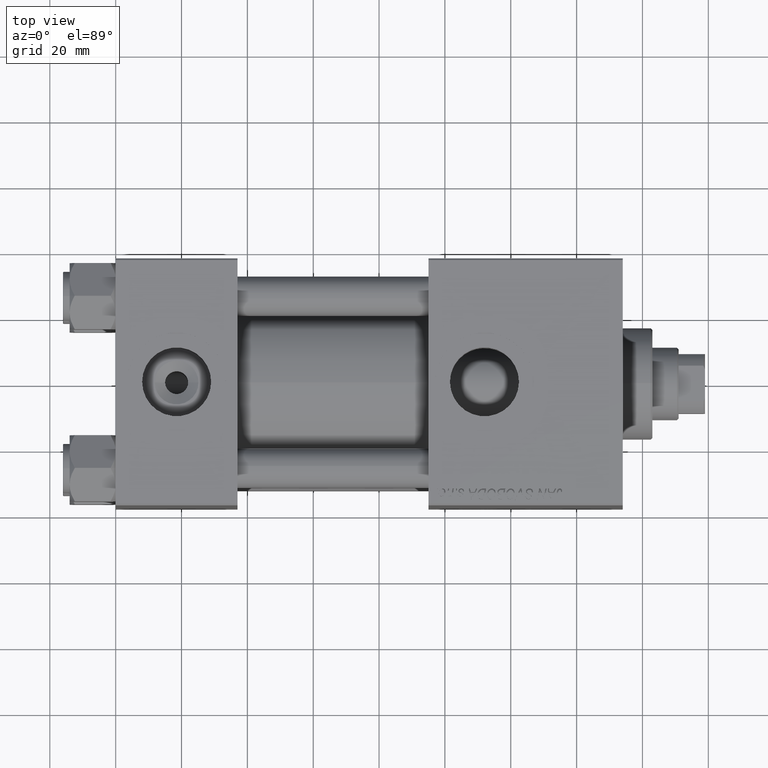
[diagram: clean part render]
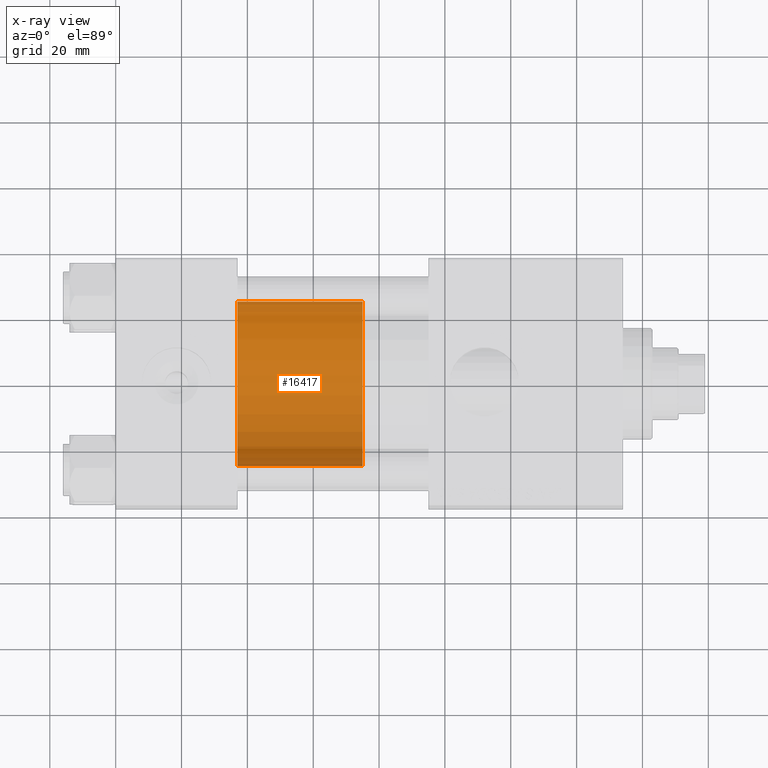
[diagram: x-ray — body ghosted, one internal face saturated and labeled with its STEP entity id]
A machine part, top view, then the same camera in x-ray: the body is ghosted and one INTERNAL B-rep face — a face not visible from any outside direction — is saturated and labeled: STEP entity #16417.
In plain terms, the highlighted cylindrical surface (partial cylindrical patch) has radius 25 mm, axis along (-1, 0, 0).
Its self-contained STEP definition (entity closure, byte-faithful):
#418 = ORIENTED_EDGE ( 'NONE', *, *, #31186, .F. ) ;
#1214 = CARTESIAN_POINT ( 'NONE',  ( 25.00000000000000000, 3.061616997868383043E-15, 38.00000000000000000 ) ) ;
#1657 = DIRECTION ( 'NONE',  ( 0.000000000000000000, 0.000000000000000000, 1.000000000000000000 ) ) ;
#1752 = AXIS2_PLACEMENT_3D ( 'NONE', #7257, #29870, #26308 ) ;
#1862 = CIRCLE ( 'NONE', #1752, 25.00000000000000000 ) ;
#3086 = EDGE_CURVE ( 'NONE', #42687, #5566, #40545, .T. ) ;
#4867 = ORIENTED_EDGE ( 'NONE', *, *, #48255, .T. ) ;
#5085 = EDGE_CURVE ( 'NONE', #42687, #28041, #1862, .T. ) ;
#5566 = VERTEX_POINT ( 'NONE', #44418 ) ;
#6024 = DIRECTION ( 'NONE',  ( -0.000000000000000000, -0.000000000000000000, -1.000000000000000000 ) ) ;
#6084 = CIRCLE ( 'NONE', #12551, 25.00000000000000000 ) ;
#6471 = ORIENTED_EDGE ( 'NONE', *, *, #5085, .F. ) ;
#7257 = CARTESIAN_POINT ( 'NONE',  ( 0.000000000000000000, 0.000000000000000000, 38.00000000000000000 ) ) ;
#8157 = EDGE_LOOP ( 'NONE', ( #6471, #45028, #4867, #418 ) ) ;
#12551 = AXIS2_PLACEMENT_3D ( 'NONE', #50218, #1657, #15449 ) ;
#13042 = LINE ( 'NONE', #39721, #19143 ) ;
#15449 = DIRECTION ( 'NONE',  ( 1.000000000000000000, 0.000000000000000000, 0.000000000000000000 ) ) ;
#16417 = ADVANCED_FACE ( 'NONE', ( #27862 ), #24059, .T. ) ;
#18813 = VECTOR ( 'NONE', #6024, 1000.000000000000000 ) ;
#19143 = VECTOR ( 'NONE', #20684, 1000.000000000000000 ) ;
#20684 = DIRECTION ( 'NONE',  ( -0.000000000000000000, -0.000000000000000000, -1.000000000000000000 ) ) ;
#23291 = DIRECTION ( 'NONE',  ( -1.000000000000000000, 0.000000000000000000, 0.000000000000000000 ) ) ;
#24059 = CYLINDRICAL_SURFACE ( 'NONE', #40676, 25.00000000000000000 ) ;
#24506 = CARTESIAN_POINT ( 'NONE',  ( -25.00000000000000000, 0.000000000000000000, 0.000000000000000000 ) ) ;
#26308 = DIRECTION ( 'NONE',  ( 1.000000000000000000, 0.000000000000000000, 0.000000000000000000 ) ) ;
#27862 = FACE_OUTER_BOUND ( 'NONE', #8157, .T. ) ;
#28041 = VERTEX_POINT ( 'NONE', #42619 ) ;
#29870 = DIRECTION ( 'NONE',  ( 0.000000000000000000, 0.000000000000000000, 1.000000000000000000 ) ) ;
#30991 = CARTESIAN_POINT ( 'NONE',  ( 25.00000000000000000, 3.061616997868383043E-15, 38.00000000000000000 ) ) ;
#31186 = EDGE_CURVE ( 'NONE', #28041, #34952, #13042, .T. ) ;
#34952 = VERTEX_POINT ( 'NONE', #24506 ) ;
#39031 = DIRECTION ( 'NONE',  ( -0.000000000000000000, -0.000000000000000000, -1.000000000000000000 ) ) ;
#39721 = CARTESIAN_POINT ( 'NONE',  ( -25.00000000000000000, 0.000000000000000000, 38.00000000000000000 ) ) ;
#40545 = LINE ( 'NONE', #1214, #18813 ) ;
#40676 = AXIS2_PLACEMENT_3D ( 'NONE', #43597, #39031, #23291 ) ;
#42619 = CARTESIAN_POINT ( 'NONE',  ( -25.00000000000000000, 0.000000000000000000, 38.00000000000000000 ) ) ;
#42687 = VERTEX_POINT ( 'NONE', #30991 ) ;
#43597 = CARTESIAN_POINT ( 'NONE',  ( 0.000000000000000000, 0.000000000000000000, 38.00000000000000000 ) ) ;
#44418 = CARTESIAN_POINT ( 'NONE',  ( 25.00000000000000000, 3.061616997868383043E-15, 0.000000000000000000 ) ) ;
#45028 = ORIENTED_EDGE ( 'NONE', *, *, #3086, .T. ) ;
#48255 = EDGE_CURVE ( 'NONE', #5566, #34952, #6084, .T. ) ;
#50218 = CARTESIAN_POINT ( 'NONE',  ( 0.000000000000000000, 0.000000000000000000, 0.000000000000000000 ) ) ;